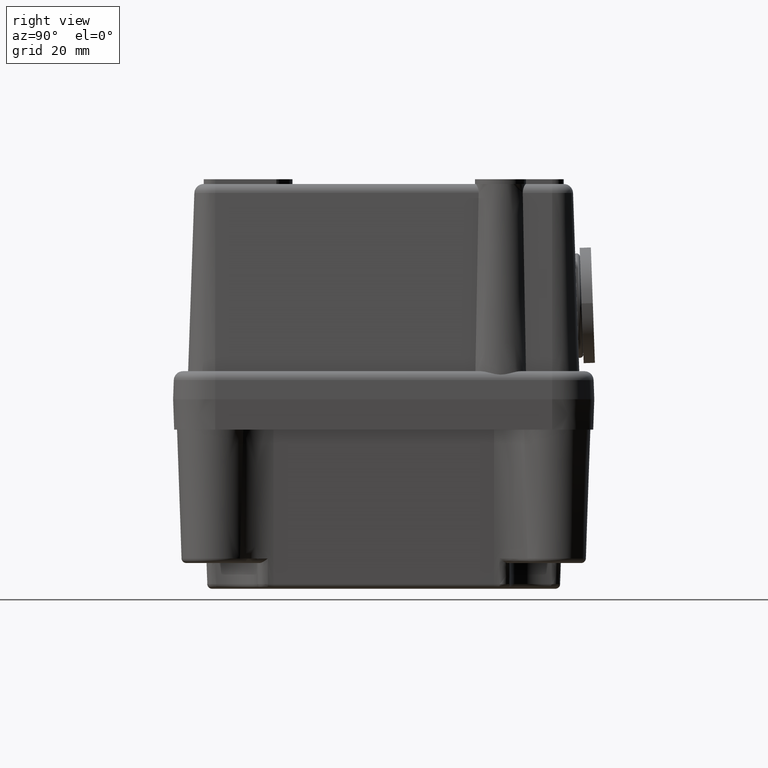
[diagram: clean part render]
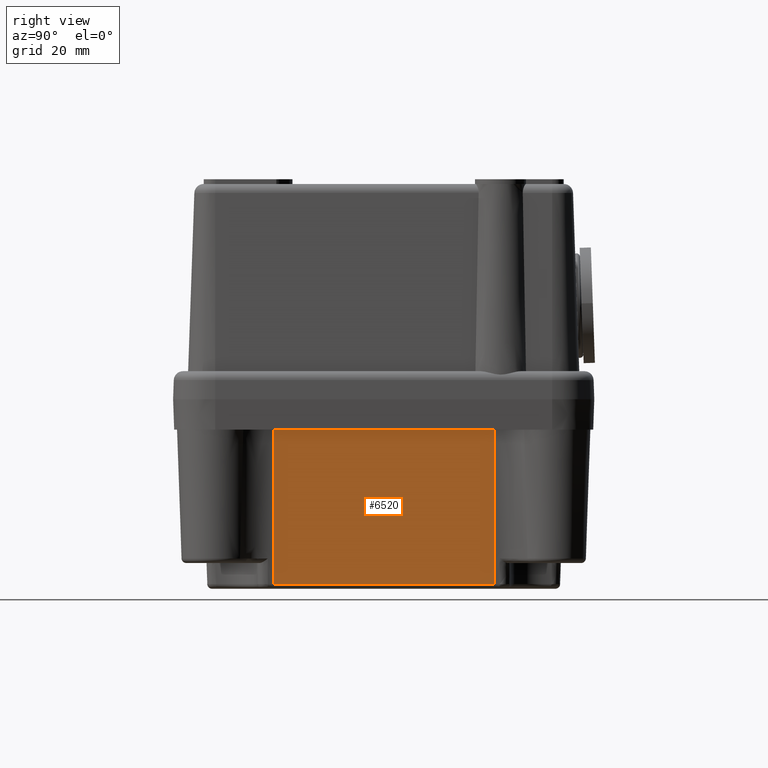
[diagram: same view with one face highlighted and labeled with its STEP entity id]
A machine part, right view. The second image highlights one B-rep face of the part: STEP entity #6520.
In plain terms, the highlighted planar face has unit normal (0.9994, -0, -0.0349).
Its self-contained STEP definition (entity closure, byte-faithful):
#4298=CARTESIAN_POINT('',(-2.489736472104906,-7.738608316045141,6.499999999999986));
#4299=VERTEX_POINT('',#4298);
#4307=CARTESIAN_POINT('',(-1.336132361597504,-7.738608316045141,39.534899496702501));
#4308=VERTEX_POINT('',#4307);
#4309=CARTESIAN_POINT('',(-1.336132361597504,-7.738608316045141,39.534899496702501));
#4310=DIRECTION('',(-0.034899496702501,0.0,-0.999390827019096));
#4311=VECTOR('',#4310,33.055035731352881);
#4312=LINE('',#4309,#4311);
#4313=EDGE_CURVE('',#4308,#4299,#4312,.T.);
#4425=CARTESIAN_POINT('',(-1.336132361597470,-54.857181445621052,39.534899496702501));
#4426=VERTEX_POINT('',#4425);
#4427=CARTESIAN_POINT('',(-1.336132361597504,-7.738608316045141,39.534899496702501));
#4428=DIRECTION('',(0.0,-1.0,0.0));
#4429=VECTOR('',#4428,47.118573129575907);
#4430=LINE('',#4427,#4429);
#4431=EDGE_CURVE('',#4308,#4426,#4430,.T.);
#6477=CARTESIAN_POINT('',(-2.489736472104845,-54.857181445621052,6.499999999999986));
#6478=VERTEX_POINT('',#6477);
#6479=CARTESIAN_POINT('',(-1.336132361597470,-54.857181445621052,39.534899496702501));
#6480=DIRECTION('',(-0.034899496702500,0.0,-0.999390827019096));
#6481=VECTOR('',#6480,33.055035731352881);
#6482=LINE('',#6479,#6481);
#6483=EDGE_CURVE('',#4426,#6478,#6482,.T.);
#6504=CARTESIAN_POINT('',(-1.302430309385483,-7.738608316045141,40.500000000000000));
#6505=DIRECTION('',(-0.999390827019096,-7.064391E-016,0.034899496702501));
#6506=DIRECTION('',(0.0,1.0,0.0));
#6507=AXIS2_PLACEMENT_3D('',#6504,#6505,#6506);
#6508=PLANE('',#6507);
#6509=ORIENTED_EDGE('',*,*,#4431,.F.);
#6510=ORIENTED_EDGE('',*,*,#4313,.T.);
#6511=CARTESIAN_POINT('',(-2.489736472104906,-7.738608316045141,6.499999999999986));
#6512=DIRECTION('',(0.0,-1.0,0.0));
#6513=VECTOR('',#6512,47.118573129575907);
#6514=LINE('',#6511,#6513);
#6515=EDGE_CURVE('',#4299,#6478,#6514,.T.);
#6516=ORIENTED_EDGE('',*,*,#6515,.T.);
#6517=ORIENTED_EDGE('',*,*,#6483,.F.);
#6518=EDGE_LOOP('',(#6509,#6510,#6516,#6517));
#6519=FACE_OUTER_BOUND('',#6518,.T.);
#6520=ADVANCED_FACE('',(#6519),#6508,.T.);